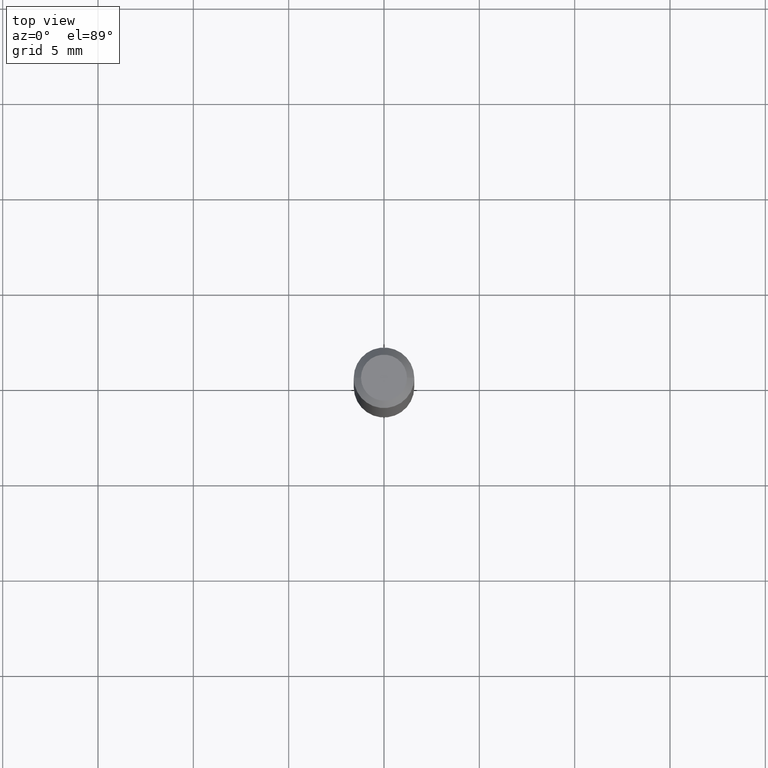
[diagram: clean part render]
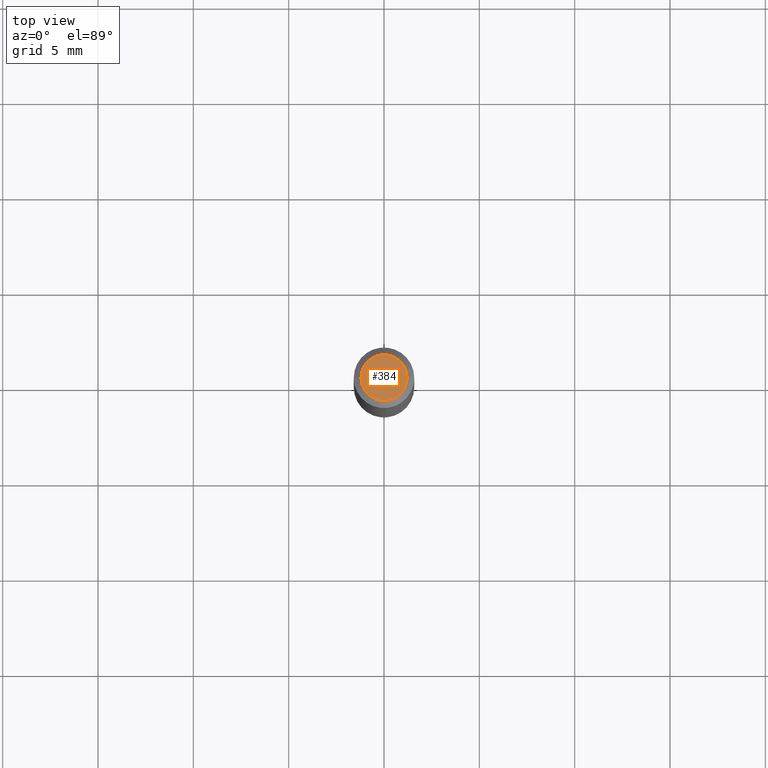
[diagram: same view with one face highlighted and labeled with its STEP entity id]
A machine part, top view. The second image highlights one B-rep face of the part: STEP entity #384.
In plain terms, the highlighted planar face has unit normal (0, -0, -1).
Its self-contained STEP definition (entity closure, byte-faithful):
#18 = AXIS2_PLACEMENT_3D ( 'NONE', #512, #472, #76 ) ;
#28 = DIRECTION ( 'NONE',  ( -1.000000000000000000, 6.982962677686265922E-15, -4.876176775795935793E-29 ) ) ;
#34 = FACE_OUTER_BOUND ( 'NONE', #181, .T. ) ;
#35 = CARTESIAN_POINT ( 'NONE',  ( 3.316907271900976589E-16, 0.04750000000000000749, -2.925296391183627249E-17 ) ) ;
#50 = ORIENTED_EDGE ( 'NONE', *, *, #262, .T. ) ;
#54 = EDGE_CURVE ( 'NONE', #369, #265, #375, .T. ) ;
#71 = PLANE ( 'NONE',  #295 ) ;
#76 = DIRECTION ( 'NONE',  ( 1.000000000000000000, -6.982962677686266711E-15, 4.852736867747365086E-29 ) ) ;
#143 = AXIS2_PLACEMENT_3D ( 'NONE', #360, #316, #436 ) ;
#181 = EDGE_LOOP ( 'NONE', ( #366, #50 ) ) ;
#194 = CARTESIAN_POINT ( 'NONE',  ( -0.04750000000000000749, 3.578768372314221353E-16, 2.731847993664239060E-16 ) ) ;
#231 = DIRECTION ( 'NONE',  ( 2.438088387897960049E-29, -3.491481338843145188E-15, -1.000000000000000000 ) ) ;
#262 = EDGE_CURVE ( 'NONE', #265, #369, #329, .T. ) ;
#265 = VERTEX_POINT ( 'NONE', #448 ) ;
#295 = AXIS2_PLACEMENT_3D ( 'NONE', #35, #231, #28 ) ;
#316 = DIRECTION ( 'NONE',  ( -2.445468806185136597E-29, 3.491481338843145583E-15, 1.000000000000000000 ) ) ;
#329 = CIRCLE ( 'NONE', #143, 0.04750000000000000749 ) ;
#360 = CARTESIAN_POINT ( 'NONE',  ( -6.680649051745406845E-45, 9.538196290434862081E-31, 2.731847993664263218E-16 ) ) ;
#366 = ORIENTED_EDGE ( 'NONE', *, *, #54, .T. ) ;
#369 = VERTEX_POINT ( 'NONE', #194 ) ;
#375 = CIRCLE ( 'NONE', #18, 0.04750000000000000749 ) ;
#384 = ADVANCED_FACE ( 'NONE', ( #34 ), #71, .F. ) ;
#436 = DIRECTION ( 'NONE',  ( 1.000000000000000000, -6.982962677686266711E-15, 4.852736867747365086E-29 ) ) ;
#448 = CARTESIAN_POINT ( 'NONE',  ( 0.04750000000000000749, -4.035134999187568762E-16, 2.731847993664288856E-16 ) ) ;
#472 = DIRECTION ( 'NONE',  ( -2.445468806185136597E-29, 3.491481338843145583E-15, 1.000000000000000000 ) ) ;
#512 = CARTESIAN_POINT ( 'NONE',  ( -6.680649051745406845E-45, 9.538196290434862081E-31, 2.731847993664263218E-16 ) ) ;